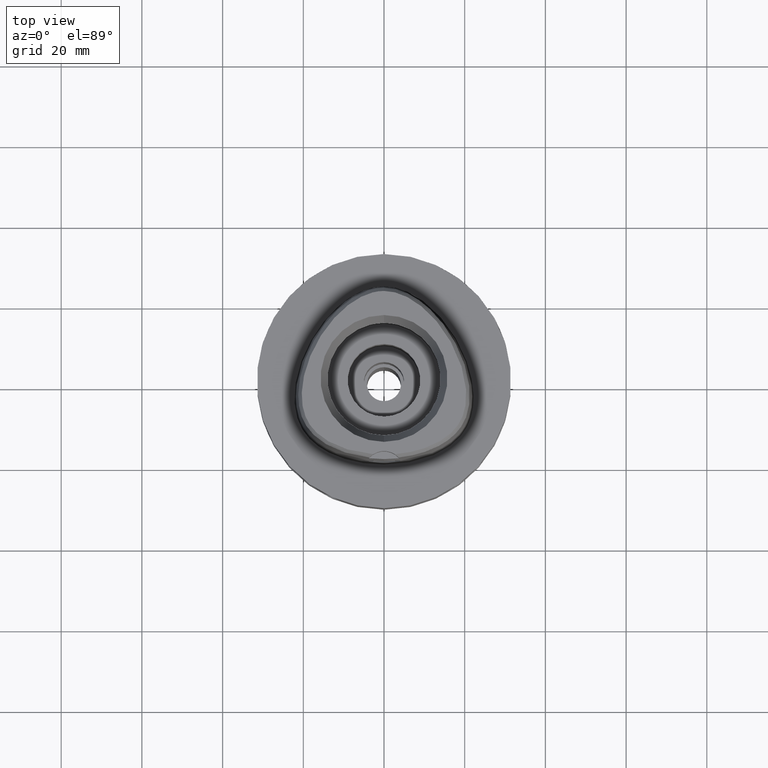
[diagram: clean part render]
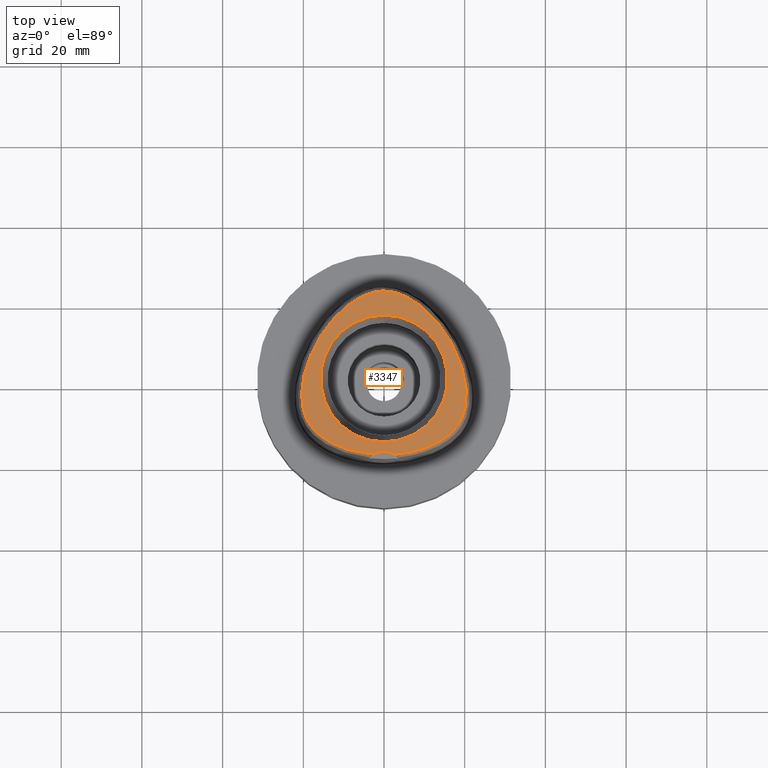
[diagram: same view with one face highlighted and labeled with its STEP entity id]
A machine part, top view. The second image highlights one B-rep face of the part: STEP entity #3347.
In plain terms, the highlighted planar face has unit normal (0, 0, 1).
Its self-contained STEP definition (entity closure, byte-faithful):
#27 = CARTESIAN_POINT ( 'NONE',  ( 8.578848111817119815, 18.44609846599299985, 37.99999999999969447 ) ) ;
#44 = CARTESIAN_POINT ( 'NONE',  ( 19.26272899268434102, 2.870227893749795811, 37.99999999999349853 ) ) ;
#48 = EDGE_CURVE ( 'NONE', #1218, #4425, #177, .T. ) ;
#100 = CARTESIAN_POINT ( 'NONE',  ( 20.40062138794568014, -4.309334958867435006, 37.99999999999896971 ) ) ;
#124 = CARTESIAN_POINT ( 'NONE',  ( 14.21382211799708095, -15.34284287399954394, 37.99999999999347011 ) ) ;
#149 = CARTESIAN_POINT ( 'NONE',  ( 20.38292172607453168, -3.276278498261679939, 37.99999999999761968 ) ) ;
#177 = B_SPLINE_CURVE_WITH_KNOTS ( 'NONE', 3,
 ( #4955, #2236, #2184, #1099, #3037, #1494, #2675, #1047, #2574, #2260, #4142, #2596, #2969, #4979, #3062, #2621, #4163, #1788, #1446, #1857, #1123, #3764, #3794, #650, #628, #4244, #2208, #3816, #3376, #247, #3010, #4587, #4195, #4619, #2653, #4219, #3838, #2360, #3886, #3936, #419, #4212, #370, #2756, #2729, #3081, #1929, #3029, #4322, #3498, #3110, #1537, #3476, #1199, #5074, #3551, #2335, #1174, #801, #4295 ),
 .UNSPECIFIED., .F., .F.,
 ( 4, 1, 1, 1, 1, 1, 1, 1, 1, 1, 1, 1, 1, 1, 1, 1, 1, 1, 1, 1, 1, 1, 1, 1, 1, 1, 1, 1, 1, 1, 1, 1, 1, 1, 1, 1, 1, 1, 1, 1, 1, 1, 1, 1, 1, 1, 1, 1, 1, 1, 1, 1, 1, 1, 1, 1, 1, 4 ),
 ( 0.0000000000000000000, 0.005420919554200098744, 0.02318126027639999531, 0.04094160099879995407, 0.05870194172099996166, 0.07646228244330000035, 0.09422262316550000794, 0.1119829638877999356, 0.1297433046099999432, 0.1475036453321999508, 0.1652639860544999895, 0.1830243267768000281, 0.2007846674991000668, 0.2185450082212999634, 0.2363053489436000021, 0.2540656896658000097, 0.2718260303881000484, 0.2895863711103000560, 0.3073467118325999836, 0.3251070525547999912, 0.3428673932771000299, 0.3606277339994000686, 0.3783880747216000762, 0.3961484154438998928, 0.4139087561661000114, 0.4316690968884000501, 0.4494294376106000577, 0.4671897783328999854, 0.4849501190552000240, 0.5027104597774000316, 0.5204708004996999593, 0.5382311412219000779, 0.5559914819442000056, 0.5737518226664000132, 0.5915121633886999408, 0.6092725041108999484, 0.6270328448331999871, 0.6447931855555000258, 0.6625535262777000334, 0.6803138669999999610, 0.6980742077221999686, 0.7158345484445000073, 0.7335948891667000149, 0.7513552298890000536, 0.7691155706112000612, 0.7868759113336000199, 0.8046362520558000275, 0.8223965927780999552, 0.8401569335002999628, 0.8579172742224999704, 0.8756776149448000091, 0.8934379556670000166, 0.9111982963893099363, 0.9289586371115700070, 0.9467189778338299666, 0.9644793185560800453, 0.9822396592783400049, 1.000000000000000000 ),
 .UNSPECIFIED. ) ;
#219 = FACE_OUTER_BOUND ( 'NONE', #3722, .T. ) ;
#223 = DIRECTION ( 'NONE',  ( 0.0000000000000000000, 0.0000000000000000000, 1.000000000000000000 ) ) ;
#247 = CARTESIAN_POINT ( 'NONE',  ( -20.38301517462823043, -3.278344853327994191, 38.00000000000507328 ) ) ;
#264 = PLANE ( 'NONE',  #3372 ) ;
#370 = CARTESIAN_POINT ( 'NONE',  ( -13.40435640711846865, 13.76268382997141160, 37.99999999999711520 ) ) ;
#405 = CARTESIAN_POINT ( 'NONE',  ( 16.09765529146888241, 9.909410920134012812, 37.99999999999531042 ) ) ;
#419 = CARTESIAN_POINT ( 'NONE',  ( -15.24692477332567719, 11.25717358965985149, 38.00000000000294875 ) ) ;
#428 = DIRECTION ( 'NONE',  ( 0.0000000000000000000, -1.000000000000000000, 0.0000000000000000000 ) ) ;
#434 = CARTESIAN_POINT ( 'NONE',  ( 11.46587147800348561, 15.92717600803449152, 37.99999999999482014 ) ) ;
#458 = CARTESIAN_POINT ( 'NONE',  ( 9.524842839488362856, 17.70516372195143617, 38.00000000000139266 ) ) ;
#463 = VERTEX_POINT ( 'NONE', #3913 ) ;
#511 = CARTESIAN_POINT ( 'NONE',  ( 16.36283630828581082, -13.76236604535401042, 37.99999999999883471 ) ) ;
#581 = CARTESIAN_POINT ( 'NONE',  ( 19.98468477322987980, -7.807876343103481886, 37.99999999999410960 ) ) ;
#606 = DIRECTION ( 'NONE',  ( 0.0000000000000000000, 1.000000000000000000, 0.0000000000000000000 ) ) ;
#628 = CARTESIAN_POINT ( 'NONE',  ( -19.98419490691276224, -7.809898894996002205, 38.00000000000449774 ) ) ;
#650 = CARTESIAN_POINT ( 'NONE',  ( -19.78262210840224355, -8.543146992552129504, 38.00000000000041922 ) ) ;
#658 = CIRCLE ( 'NONE', #2617, 5.000000000000000888 ) ;
#801 = CARTESIAN_POINT ( 'NONE',  ( -0.2181979014508364234, 21.68728795388774699, 37.99999999999683098 ) ) ;
#845 = ORIENTED_EDGE ( 'NONE', *, *, #48, .F. ) ;
#881 = ORIENTED_EDGE ( 'NONE', *, *, #4307, .F. ) ;
#897 = CARTESIAN_POINT ( 'NONE',  ( 18.31883910943221849, -11.58595831188078229, 37.99999999999130296 ) ) ;
#1005 = DIRECTION ( 'NONE',  ( 0.0000000000000000000, 1.000000000000000000, 0.0000000000000000000 ) ) ;
#1047 = CARTESIAN_POINT ( 'NONE',  ( -10.17136073855090217, -17.24644253470494348, 38.00000000000175504 ) ) ;
#1099 = CARTESIAN_POINT ( 'NONE',  ( -4.706994425064331189, -18.56721852572915665, 38.00000000000480327 ) ) ;
#1123 = CARTESIAN_POINT ( 'NONE',  ( -18.99520880204269702, -10.46968343926387313, 38.00000000000645883 ) ) ;
#1129 = CARTESIAN_POINT ( 'NONE',  ( 2.018320379028311962, 21.50256508436208591, 37.99999999999574385 ) ) ;
#1156 = CARTESIAN_POINT ( 'NONE',  ( 2.736932690727203354, 21.34527940057185802, 37.99999999999876366 ) ) ;
#1174 = CARTESIAN_POINT ( 'NONE',  ( -0.6498990081534303798, 21.67378274707824914, 38.00000000000031974 ) ) ;
#1179 = EDGE_CURVE ( 'NONE', #4425, #463, #3673, .T. ) ;
#1199 = CARTESIAN_POINT ( 'NONE',  ( -3.481017203588607334, 21.13509756881874679, 38.00000000000183320 ) ) ;
#1211 = CARTESIAN_POINT ( 'NONE',  ( 16.88599964843513845, 8.518708218770632001, 37.99999999999705835 ) ) ;
#1218 = VERTEX_POINT ( 'NONE', #1825 ) ;
#1230 = CARTESIAN_POINT ( 'NONE',  ( 19.94150023628121104, 0.2261566111946586299, 37.99999999999574385 ) ) ;
#1257 = CARTESIAN_POINT ( 'NONE',  ( 15.72078707640383755, -14.29615620309761681, 37.99999999999566569 ) ) ;
#1282 = CARTESIAN_POINT ( 'NONE',  ( 3.529311563348290992, -18.70747079909743249, 38.00000000000051870 ) ) ;
#1306 = CARTESIAN_POINT ( 'NONE',  ( 19.78323211893092548, -8.541156231035660795, 37.99999999999155165 ) ) ;
#1333 = CARTESIAN_POINT ( 'NONE',  ( 20.27923816685658309, -6.179850483268596761, 37.99999999999858602 ) ) ;
#1419 = FACE_BOUND ( 'NONE', #4428, .T. ) ;
#1446 = CARTESIAN_POINT ( 'NONE',  ( -18.31748213707299655, -11.58791794387819962, 37.99999999999435119 ) ) ;
#1494 = CARTESIAN_POINT ( 'NONE',  ( -7.599370508969999882, -18.01010694911019172, 38.00000000000370193 ) ) ;
#1537 = CARTESIAN_POINT ( 'NONE',  ( -5.058220461388800437, 20.53445508814578702, 38.00000000000174794 ) ) ;
#1552 = CARTESIAN_POINT ( 'NONE',  ( 5.059249257021223301, 20.53399274679163256, 37.99999999999690914 ) ) ;
#1605 = CARTESIAN_POINT ( 'NONE',  ( 19.64387775268556524, 1.522048414458541998, 37.99999999999939604 ) ) ;
#1647 = EDGE_CURVE ( 'NONE', #463, #1218, #658, .T. ) ;
#1662 = CARTESIAN_POINT ( 'NONE',  ( 12.37622418509650934, -16.33871033285636898, 37.99999999999781863 ) ) ;
#1687 = CARTESIAN_POINT ( 'NONE',  ( 19.28677546797092290, -9.867757137506146137, 37.99999999999849365 ) ) ;
#1711 = CARTESIAN_POINT ( 'NONE',  ( 4.715576077242062070, -18.56597918135478409, 37.99999999998944844 ) ) ;
#1788 = CARTESIAN_POINT ( 'NONE',  ( -17.91005512243627606, -12.13778127739842283, 37.99999999999964473 ) ) ;
#1817 = AXIS2_PLACEMENT_3D ( 'NONE', #4117, #223, #606 ) ;
#1825 = CARTESIAN_POINT ( 'NONE',  ( -2.682279906006999948, -18.78035848609999903, 38.00000000000000000 ) ) ;
#1857 = CARTESIAN_POINT ( 'NONE',  ( -18.67608643721239403, -11.03561202291155574, 38.00000000000592593 ) ) ;
#1887 = DIRECTION ( 'NONE',  ( 0.0000000000000000000, 0.0000000000000000000, 1.000000000000000000 ) ) ;
#1919 = CARTESIAN_POINT ( 'NONE',  ( 4.255661039972703286, 20.86618068829759665, 37.99999999999757705 ) ) ;
#1929 = CARTESIAN_POINT ( 'NONE',  ( -9.524337278000722051, 17.70558492631310088, 37.99999999999862865 ) ) ;
#2012 = CARTESIAN_POINT ( 'NONE',  ( 3.482188079160407845, 21.13472718027384900, 37.99999999999358380 ) ) ;
#2110 = CARTESIAN_POINT ( 'NONE',  ( 16.93855157777865728, -13.22377441789303631, 37.99999999999516120 ) ) ;
#2184 = CARTESIAN_POINT ( 'NONE',  ( -3.522896839653820056, -18.70811514173002976, 37.99999999999810996 ) ) ;
#2208 = CARTESIAN_POINT ( 'NONE',  ( -20.27898581531900035, -6.181921586190092910, 37.99999999999917577 ) ) ;
#2235 = ORIENTED_EDGE ( 'NONE', *, *, #1647, .F. ) ;
#2236 = CARTESIAN_POINT ( 'NONE',  ( -2.841965291530565096, -18.76757795571897702, 38.00000000000000711 ) ) ;
#2260 = CARTESIAN_POINT ( 'NONE',  ( -12.37132652997723170, -16.34104299087847068, 37.99999999999593570 ) ) ;
#2335 = CARTESIAN_POINT ( 'NONE',  ( -1.323674540693978718, 21.61098849315493098, 38.00000000000478195 ) ) ;
#2347 = CARTESIAN_POINT ( 'NONE',  ( 13.40430406168690425, 13.76274261013552191, 38.00000000000353140 ) ) ;
#2360 = CARTESIAN_POINT ( 'NONE',  ( -17.60426951086781955, 7.098774535281095588, 37.99999999999553779 ) ) ;
#2373 = CARTESIAN_POINT ( 'NONE',  ( 15.24661770199365129, 11.25762885478220099, 37.99999999999704414 ) ) ;
#2501 = CARTESIAN_POINT ( 'NONE',  ( 17.91165267839127395, -12.13575389397977844, 38.00000000000256506 ) ) ;
#2522 = CARTESIAN_POINT ( 'NONE',  ( 7.606839420237577976, -18.00827588386000500, 37.99999999999611333 ) ) ;
#2565 = DIRECTION ( 'NONE',  ( 1.000000000000000000, 0.0000000000000000000, 0.0000000000000000000 ) ) ;
#2574 = CARTESIAN_POINT ( 'NONE',  ( -11.31790883121215430, -16.80796958613644776, 37.99999999999690203 ) ) ;
#2575 = CARTESIAN_POINT ( 'NONE',  ( 0.0000000000000000000, 15.71487483155999776, 38.00000000000000000 ) ) ;
#2596 = CARTESIAN_POINT ( 'NONE',  ( -14.21001600787599983, -15.34519100086012600, 38.00000000000365219 ) ) ;
#2617 = AXIS2_PLACEMENT_3D ( 'NONE', #4839, #2878, #1005 ) ;
#2621 = CARTESIAN_POINT ( 'NONE',  ( -16.93638123745533619, -13.22593246128441713, 37.99999999999885603 ) ) ;
#2653 = CARTESIAN_POINT ( 'NONE',  ( -19.26324493738416876, 2.868570891456207583, 38.00000000000137845 ) ) ;
#2675 = CARTESIAN_POINT ( 'NONE',  ( -8.930096025510261271, -17.65000298921473743, 38.00000000000599698 ) ) ;
#2712 = CARTESIAN_POINT ( 'NONE',  ( 6.760281394351100204, 19.65404668909665631, 37.99999999999551648 ) ) ;
#2729 = CARTESIAN_POINT ( 'NONE',  ( -11.46564124493985304, 15.92741340513549630, 37.99999999999933920 ) ) ;
#2743 = CARTESIAN_POINT ( 'NONE',  ( 7.655962789344036956, 19.09402979099995790, 37.99999999999945999 ) ) ;
#2756 = CARTESIAN_POINT ( 'NONE',  ( -12.44116897271395850, 14.89128547409436898, 37.99999999999977973 ) ) ;
#2790 = CARTESIAN_POINT ( 'NONE',  ( 18.24247239569456269, 5.672548708072491230, 37.99999999999612044 ) ) ;
#2817 = CARTESIAN_POINT ( 'NONE',  ( 8.936919536467573977, -17.64796721715141103, 37.99999999999739231 ) ) ;
#2865 = EDGE_CURVE ( 'NONE', #4262, #3323, #3042, .T. ) ;
#2878 = DIRECTION ( 'NONE',  ( 0.0000000000000000000, 0.0000000000000000000, 1.000000000000000000 ) ) ;
#2882 = AXIS2_PLACEMENT_3D ( 'NONE', #3063, #1887, #428 ) ;
#2969 = CARTESIAN_POINT ( 'NONE',  ( -15.00295592774017805, -14.82617991125695056, 38.00000000000007105 ) ) ;
#2981 = DIRECTION ( 'NONE',  ( 0.0000000000000000000, 0.0000000000000000000, 1.000000000000000000 ) ) ;
#3010 = CARTESIAN_POINT ( 'NONE',  ( -20.30498420086471967, -2.177378896258132190, 38.00000000000869704 ) ) ;
#3029 = CARTESIAN_POINT ( 'NONE',  ( -8.578220530113048525, 18.44656747109441497, 38.00000000000743228 ) ) ;
#3037 = CARTESIAN_POINT ( 'NONE',  ( -6.188376196366087711, -18.31830638231210173, 38.00000000000228084 ) ) ;
#3042 = CIRCLE ( 'NONE', #1817, 15.71487483155999776 ) ;
#3062 = CARTESIAN_POINT ( 'NONE',  ( -16.36032397153588391, -13.76458520345051006, 38.00000000000754596 ) ) ;
#3063 = CARTESIAN_POINT ( 'NONE',  ( 0.0000000000000000000, 0.0000000000000000000, 38.00000000000000000 ) ) ;
#3081 = CARTESIAN_POINT ( 'NONE',  ( -10.48962422759113267, 16.86631853278957038, 38.00000000000623146 ) ) ;
#3110 = CARTESIAN_POINT ( 'NONE',  ( -5.893543501600463586, 20.13235399351898280, 38.00000000000866862 ) ) ;
#3151 = CARTESIAN_POINT ( 'NONE',  ( -3.470944899480000089E-11, 21.68728795390000030, 38.00000000000000000 ) ) ;
#3172 = CARTESIAN_POINT ( 'NONE',  ( 20.15982952132472050, -1.007721426051606306, 37.99999999999756284 ) ) ;
#3196 = CARTESIAN_POINT ( 'NONE',  ( 15.00628712262997411, -14.82385870794800198, 37.99999999998954792 ) ) ;
#3249 = CARTESIAN_POINT ( 'NONE',  ( 11.32341394162770420, -16.80569392800815365, 37.99999999999358380 ) ) ;
#3275 = CARTESIAN_POINT ( 'NONE',  ( 19.54993126782101243, -9.226212439886040784, 37.99999999999952394 ) ) ;
#3288 = CIRCLE ( 'NONE', #2882, 15.71487483155999776 ) ;
#3305 = CARTESIAN_POINT ( 'NONE',  ( 20.15127154947314736, -7.022178451341296146, 38.00000000000301981 ) ) ;
#3323 = VERTEX_POINT ( 'NONE', #3712 ) ;
#3347 = ADVANCED_FACE ( 'NONE', ( #219, #1419 ), #264, .T. ) ;
#3372 = AXIS2_PLACEMENT_3D ( 'NONE', #3755, #2981, #2565 ) ;
#3376 = CARTESIAN_POINT ( 'NONE',  ( -20.40060226222732709, -4.311417605381348217, 38.00000000000935074 ) ) ;
#3453 = ORIENTED_EDGE ( 'NONE', *, *, #1179, .F. ) ;
#3476 = CARTESIAN_POINT ( 'NONE',  ( -4.254559144977076990, 20.86660163697182924, 38.00000000000056843 ) ) ;
#3486 = CARTESIAN_POINT ( 'NONE',  ( 10.48999540691094623, 16.86597469869989752, 37.99999999999588596 ) ) ;
#3498 = CARTESIAN_POINT ( 'NONE',  ( -6.759433772716883837, 19.65454812513130278, 37.99999999999496936 ) ) ;
#3508 = CARTESIAN_POINT ( 'NONE',  ( 0.6513209347956429029, 21.67370899611745827, 37.99999999999644018 ) ) ;
#3551 = CARTESIAN_POINT ( 'NONE',  ( -2.017025177696583071, 21.50280829368233526, 37.99999999999914735 ) ) ;
#3562 = CARTESIAN_POINT ( 'NONE',  ( 18.79595068776539435, 4.257753965101716886, 37.99999999999848654 ) ) ;
#3644 = CARTESIAN_POINT ( 'NONE',  ( 10.17751632998552402, -17.24426134458688509, 37.99999999999725731 ) ) ;
#3673 = B_SPLINE_CURVE_WITH_KNOTS ( 'NONE', 3,
 ( #3151, #4676, #3508, #3951, #1129, #1156, #2012, #1919, #1552, #4729, #2712, #2743, #27, #458, #3486, #434, #4310, #2347, #3921, #2373, #405, #1211, #4333, #2790, #3562, #44, #1605, #1230, #3172, #4751, #149, #100, #4069, #1333, #3305, #581, #1306, #3275, #1687, #4831, #4413, #897, #2501, #4778, #2110, #511, #1257, #3196, #124, #3721, #1662, #3249, #3644, #2817, #2522, #4015, #1711, #1282, #4389, #4880 ),
 .UNSPECIFIED., .F., .F.,
 ( 4, 1, 1, 1, 1, 1, 1, 1, 1, 1, 1, 1, 1, 1, 1, 1, 1, 1, 1, 1, 1, 1, 1, 1, 1, 1, 1, 1, 1, 1, 1, 1, 1, 1, 1, 1, 1, 1, 1, 1, 1, 1, 1, 1, 1, 1, 1, 1, 1, 1, 1, 1, 1, 1, 1, 1, 1, 4 ),
 ( 0.0000000000000000000, 0.01775854187129999318, 0.03551708374169992855, 0.05327562561200005486, 0.07103416748239999023, 0.08879270935270000553, 0.1065512512231000519, 0.1243097930933999562, 0.1420683349638000026, 0.1598268768341000179, 0.1775854187044000332, 0.1953439605747999686, 0.2131025024450999839, 0.2308610443155000302, 0.2486195861857999345, 0.2663781280563000120, 0.2841366699266000273, 0.3018952117970000737, 0.3196537536672999780, 0.3374122955377000244, 0.3551708374080000397, 0.3729293792782999439, 0.3906879211486999903, 0.4084464630190000056, 0.4262050048894000520, 0.4439635467596999563, 0.4617220886301000027, 0.4794806305004000180, 0.4972391723707999533, 0.5149977142410999686, 0.5327562561113999839, 0.5505147979818000303, 0.5682733398521000456, 0.5860318817224999810, 0.6037904235927999963, 0.6215489654632000427, 0.6393075073334999470, 0.6570660492038999934, 0.6748245910742000087, 0.6925831329445000240, 0.7103416748149000703, 0.7281002166851999746, 0.7458587585556000210, 0.7636173004259000363, 0.7813758422962999717, 0.7991343841665999870, 0.8168929260370000334, 0.8346514679073000487, 0.8524100097776999840, 0.8701685516479999993, 0.8879270935183000146, 0.9056856353886799660, 0.9234441772589799813, 0.9412027191293600437, 0.9589612609997000270, 0.9767198028700500023, 0.9944783447403919840, 1.000000000000000000 ),
 .UNSPECIFIED. ) ;
#3712 = CARTESIAN_POINT ( 'NONE',  ( 0.0000000000000000000, -15.71487483155999776, 38.00000000000000000 ) ) ;
#3721 = CARTESIAN_POINT ( 'NONE',  ( 13.33890749495675188, -15.84912955619626196, 37.99999999999087663 ) ) ;
#3722 = EDGE_LOOP ( 'NONE', ( #3453, #845, #2235 ) ) ;
#3755 = CARTESIAN_POINT ( 'NONE',  ( 0.0000000000000000000, 0.0000000000000000000, 38.00000000000000000 ) ) ;
#3764 = CARTESIAN_POINT ( 'NONE',  ( -19.28591707036995828, -9.869682450885918001, 37.99999999999854339 ) ) ;
#3794 = CARTESIAN_POINT ( 'NONE',  ( -19.54919922641680330, -9.228169790568164998, 38.00000000000149214 ) ) ;
#3816 = CARTESIAN_POINT ( 'NONE',  ( -20.36398648679525181, -5.278470727085382563, 37.99999999999891287 ) ) ;
#3838 = CARTESIAN_POINT ( 'NONE',  ( -18.24302769442187611, 5.671232572958369467, 38.00000000000193268 ) ) ;
#3886 = CARTESIAN_POINT ( 'NONE',  ( -16.88647904405379663, 8.517821442301887203, 38.00000000000122213 ) ) ;
#3913 = CARTESIAN_POINT ( 'NONE',  ( 2.682287482605000051, -18.78036330228999873, 38.00000000000000000 ) ) ;
#3921 = CARTESIAN_POINT ( 'NONE',  ( 14.34383722811734430, 12.54786717290684095, 37.99999999999333511 ) ) ;
#3936 = CARTESIAN_POINT ( 'NONE',  ( -16.09805956313219255, 9.908742513517278638, 38.00000000000422773 ) ) ;
#3951 = CARTESIAN_POINT ( 'NONE',  ( 1.325020189552903238, 21.61081414409047241, 37.99999999999850786 ) ) ;
#4015 = CARTESIAN_POINT ( 'NONE',  ( 6.196495988003841937, -18.31673538865288364, 37.99999999999477041 ) ) ;
#4069 = CARTESIAN_POINT ( 'NONE',  ( 20.36412151361300360, -5.276385427453730514, 38.00000000000007105 ) ) ;
#4117 = CARTESIAN_POINT ( 'NONE',  ( 0.0000000000000000000, 0.0000000000000000000, 38.00000000000000000 ) ) ;
#4142 = CARTESIAN_POINT ( 'NONE',  ( -13.33457781970260747, -15.85148397417583332, 38.00000000000445510 ) ) ;
#4163 = CARTESIAN_POINT ( 'NONE',  ( -17.45119705493867102, -12.68365517585486124, 38.00000000000657963 ) ) ;
#4195 = CARTESIAN_POINT ( 'NONE',  ( -19.94188961899432400, 0.2242544969874367411, 38.00000000000488853 ) ) ;
#4212 = CARTESIAN_POINT ( 'NONE',  ( -14.34402387965510428, 12.54761970512681479, 37.99999999999706546 ) ) ;
#4219 = CARTESIAN_POINT ( 'NONE',  ( -18.79649882724814702, 4.256255933890764176, 38.00000000000182609 ) ) ;
#4244 = CARTESIAN_POINT ( 'NONE',  ( -20.15090095365033918, -7.024227649787342820, 38.00000000000436273 ) ) ;
#4262 = VERTEX_POINT ( 'NONE', #2575 ) ;
#4295 = CARTESIAN_POINT ( 'NONE',  ( -3.470944899480000089E-11, 21.68728795390000030, 38.00000000000000000 ) ) ;
#4307 = EDGE_CURVE ( 'NONE', #3323, #4262, #3288, .T. ) ;
#4310 = CARTESIAN_POINT ( 'NONE',  ( 12.44125753246927957, 14.89118158853824347, 37.99999999999881339 ) ) ;
#4322 = CARTESIAN_POINT ( 'NONE',  ( -7.655222869371276495, 19.09452359226084894, 37.99999999999414513 ) ) ;
#4333 = CARTESIAN_POINT ( 'NONE',  ( 17.60373714028371950, 7.099883643193355631, 37.99999999999788969 ) ) ;
#4389 = CARTESIAN_POINT ( 'NONE',  ( 2.845098933833343668, -18.76733062685730147, 37.99999999999891287 ) ) ;
#4413 = CARTESIAN_POINT ( 'NONE',  ( 18.67722910598270403, -11.03372143228280677, 37.99999999999906208 ) ) ;
#4425 = VERTEX_POINT ( 'NONE', #5079 ) ;
#4428 = EDGE_LOOP ( 'NONE', ( #881, #5031 ) ) ;
#4587 = CARTESIAN_POINT ( 'NONE',  ( -20.16012968311303410, -1.009698174524192416, 38.00000000000625988 ) ) ;
#4619 = CARTESIAN_POINT ( 'NONE',  ( -19.64434054693046150, 1.520253387635594144, 37.99999999999535305 ) ) ;
#4676 = CARTESIAN_POINT ( 'NONE',  ( 0.2185816947241816521, 21.68728795389941766, 38.00000000000018474 ) ) ;
#4729 = CARTESIAN_POINT ( 'NONE',  ( 5.894487344450643818, 20.13186406532422978, 37.99999999999319300 ) ) ;
#4751 = CARTESIAN_POINT ( 'NONE',  ( 20.30478359881853834, -2.175347700950959418, 37.99999999999145217 ) ) ;
#4778 = CARTESIAN_POINT ( 'NONE',  ( 17.45306278053710969, -12.68156296993510068, 37.99999999999611333 ) ) ;
#4831 = CARTESIAN_POINT ( 'NONE',  ( 18.99619228226448797, -10.46780014453160135, 37.99999999999253220 ) ) ;
#4839 = CARTESIAN_POINT ( 'NONE',  ( 0.0000000000000000000, -23.00000000000000000, 38.00000000000000000 ) ) ;
#4880 = CARTESIAN_POINT ( 'NONE',  ( 2.682287482605000051, -18.78036330228999873, 38.00000000000000000 ) ) ;
#4955 = CARTESIAN_POINT ( 'NONE',  ( -2.682279906006999948, -18.78035848609999903, 38.00000000000000000 ) ) ;
#4979 = CARTESIAN_POINT ( 'NONE',  ( -15.71788912669047988, -14.29843101566370045, 37.99999999999911893 ) ) ;
#5031 = ORIENTED_EDGE ( 'NONE', *, *, #2865, .F. ) ;
#5074 = CARTESIAN_POINT ( 'NONE',  ( -2.735698246183352556, 21.34559102902495908, 38.00000000000353140 ) ) ;
#5079 = CARTESIAN_POINT ( 'NONE',  ( -3.470944899480000089E-11, 21.68728795390000030, 38.00000000000000000 ) ) ;